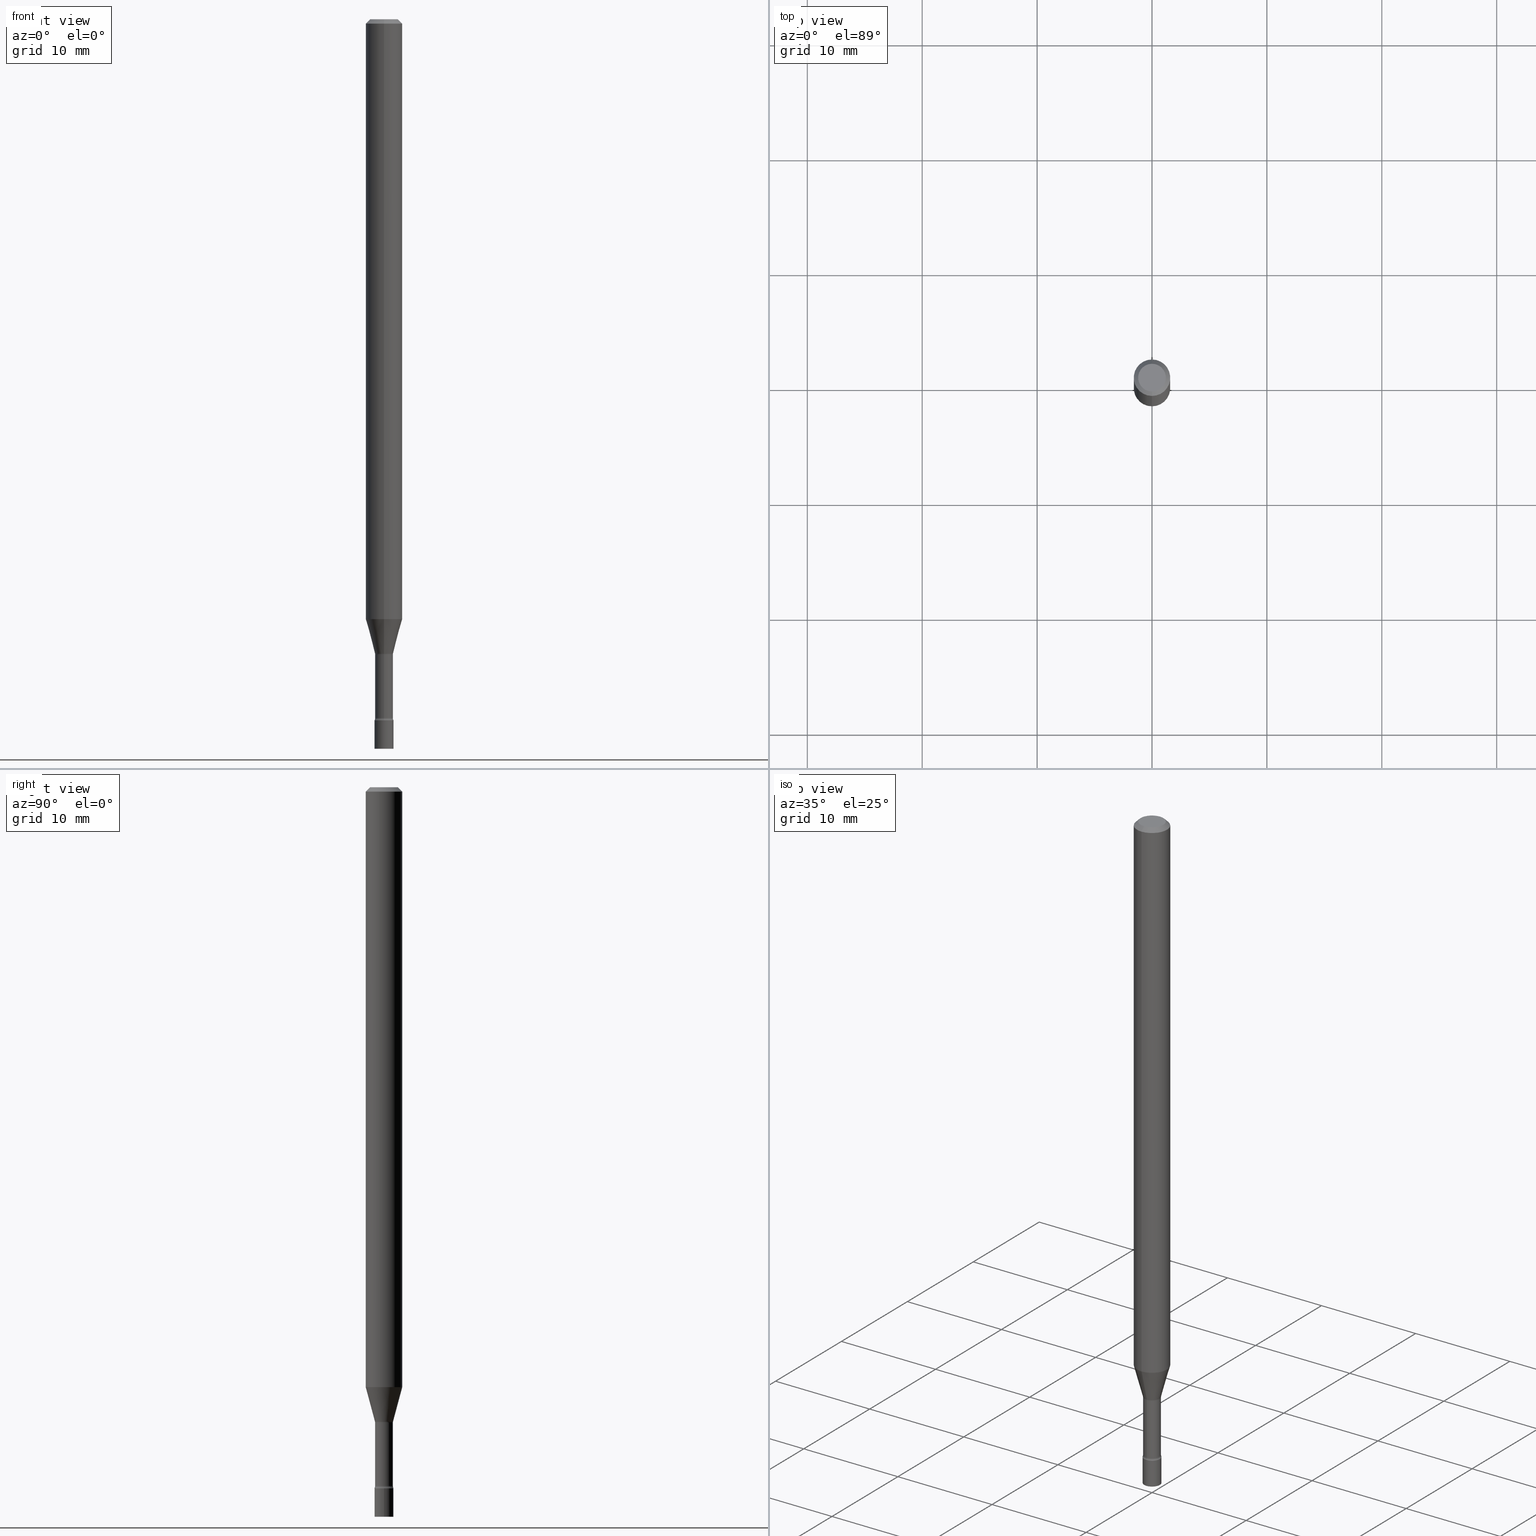
[diagram: canonical four-view strip — front | top / right | iso, engineering-drawing reading convention]
A machine part, canonical four-view strip (front | top / right | iso — engineering-drawing reading convention). The complete STEP part file that produces these views, byte-faithful:
ISO-10303-21;
HEADER;
FILE_DESCRIPTION (( 'STEP AP203' ),
    '1' );
FILE_NAME ('03549.STEP',
    '2024-03-08T21:46:13',
    ( '' ),
    ( '' ),
    'SwSTEP 2.0',
    'SolidWorks 2023',
    '' );
FILE_SCHEMA (( 'CONFIG_CONTROL_DESIGN' ));
ENDSEC;

DATA;
#1 = ADVANCED_FACE ( 'NONE', ( #135 ), #285, .T. ) ;
#2 = DIRECTION ( 'NONE',  ( -2.445468806185136597E-29, 3.491481338843145583E-15, 1.000000000000000000 ) ) ;
#3 = DIRECTION ( 'NONE',  ( -1.807323732225326589E-15, -0.2588190451025176864, 0.9659258262890690894 ) ) ;
#4 = ORIENTED_EDGE ( 'NONE', *, *, #188, .F. ) ;
#5 = CYLINDRICAL_SURFACE ( 'NONE', #463, 0.03055000000000001464 ) ;
#6 = VERTEX_POINT ( 'NONE', #75 ) ;
#7 = FACE_OUTER_BOUND ( 'NONE', #126, .T. ) ;
#8 = DESIGN_CONTEXT ( 'detailed design', #423, 'design' ) ;
#9 = CIRCLE ( 'NONE', #461, 0.01500000000000001853 ) ;
#10 = VERTEX_POINT ( 'NONE', #364 ) ;
#11 = AXIS2_PLACEMENT_3D ( 'NONE', #359, #149, #324 ) ;
#12 = DIRECTION ( 'NONE',  ( -2.445450430524897640E-29, 3.491507653834484674E-15, 1.000000000000000000 ) ) ;
#13 = APPROVAL_STATUS ( 'not_yet_approved' ) ;
#14 = ADVANCED_FACE ( 'NONE', ( #338 ), #414, .T. ) ;
#15 = DIRECTION ( 'NONE',  ( -6.982962677686265922E-15, -1.000000000000000000, 3.491507653834485069E-15 ) ) ;
#16 = DIRECTION ( 'NONE',  ( -2.445450430524897920E-29, 3.491507653834485069E-15, 1.000000000000000000 ) ) ;
#17 = DIRECTION ( 'NONE',  ( -2.445450430524897920E-29, 3.491507653834485069E-15, 1.000000000000000000 ) ) ;
#18 = FACE_OUTER_BOUND ( 'NONE', #312, .T. ) ;
#19 = CIRCLE ( 'NONE', #202, 0.03055000000000002505 ) ;
#20 = FACE_OUTER_BOUND ( 'NONE', #208, .T. ) ;
#21 = CC_DESIGN_PERSON_AND_ORGANIZATION_ASSIGNMENT ( #59, #91, ( #57 ) ) ;
#22 =( LENGTH_UNIT ( ) NAMED_UNIT ( * ) SI_UNIT ( $, .METRE. ) );
#23 = APPROVAL_STATUS ( 'not_yet_approved' ) ;
#24 = DIRECTION ( 'NONE',  ( -2.445468806185136597E-29, 3.491481338843145583E-15, 1.000000000000000000 ) ) ;
#25 = ORIENTED_EDGE ( 'NONE', *, *, #313, .F. ) ;
#26 = CIRCLE ( 'NONE', #108, 0.06250000000000000000 ) ;
#27 = CONICAL_SURFACE ( 'NONE', #342, 0.06250000000000000000, 0.7853981633974483900 ) ;
#28 = EDGE_CURVE ( 'NONE', #86, #520, #9, .T. ) ;
#29 = PLANE ( 'NONE',  #390 ) ;
#30 = ADVANCED_FACE ( 'NONE', ( #103 ), #468, .T. ) ;
#31 = DIRECTION ( 'NONE',  ( 1.000000000000000000, -6.982962677686258033E-15, 0.000000000000000000 ) ) ;
#32 = VERTEX_POINT ( 'NONE', #257 ) ;
#33 = TOROIDAL_SURFACE ( 'NONE', #434, 0.04555000000000000021, 0.01500000000000002373 ) ;
#34 = AXIS2_PLACEMENT_3D ( 'NONE', #93, #303, #263 ) ;
#35 = CARTESIAN_POINT ( 'NONE',  ( 3.668175645787353746E-31, -5.237261480751738302E-17, -0.01500000000000003067 ) ) ;
#36 = LINE ( 'NONE', #160, #318 ) ;
#37 = ORIENTED_EDGE ( 'NONE', *, *, #483, .T. ) ;
#38 = CARTESIAN_POINT ( 'NONE',  ( 0.000000000000000000, 0.000000000000000000, 0.000000000000000000 ) ) ;
#39 = EDGE_LOOP ( 'NONE', ( #457, #399, #45, #255 ) ) ;
#40 = PRODUCT_DEFINITION ( 'UNKNOWN', '', #57, #8 ) ;
#41 = CIRCLE ( 'NONE', #68, 0.03250000000000000111 ) ;
#42 = CARTESIAN_POINT ( 'NONE',  ( 3.668175645787353746E-31, -5.237261480751738302E-17, -0.01500000000000003067 ) ) ;
#43 = ORIENTED_EDGE ( 'NONE', *, *, #69, .F. ) ;
#44 = DIRECTION ( 'NONE',  ( -2.445468806185136877E-29, 3.491481338843145188E-15, 1.000000000000000000 ) ) ;
#45 = ORIENTED_EDGE ( 'NONE', *, *, #437, .F. ) ;
#46 = CARTESIAN_POINT ( 'NONE',  ( 0.000000000000000000, 0.000000000000000000, 0.000000000000000000 ) ) ;
#47 = EDGE_LOOP ( 'NONE', ( #409, #170 ) ) ;
#48 = PERSON_AND_ORGANIZATION ( #314, #62 ) ;
#49 = PRODUCT_RELATED_PRODUCT_CATEGORY ( 'detail', '', ( #469 ) ) ;
#50 = LINE ( 'NONE', #218, #386 ) ;
#51 = CC_DESIGN_PERSON_AND_ORGANIZATION_ASSIGNMENT ( #504, #144, ( #227 ) ) ;
#52 = DIRECTION ( 'NONE',  ( -1.000000000000000000, 6.982962677686265922E-15, -4.876176775795935793E-29 ) ) ;
#53 = CIRCLE ( 'NONE', #492, 0.03055000000000002505 ) ;
#54 = DATE_TIME_ROLE ( 'classification_date' ) ;
#55 = APPROVAL_DATE_TIME ( #275, #363 ) ;
#56 = AXIS2_PLACEMENT_3D ( 'NONE', #212, #370, #476 ) ;
#57 = PRODUCT_DEFINITION_FORMATION_WITH_SPECIFIED_SOURCE ( 'ANY', '', #469, .NOT_KNOWN. ) ;
#58 = CARTESIAN_POINT ( 'NONE',  ( 0.000000000000000000, 0.000000000000000000, 0.000000000000000000 ) ) ;
#59 = PERSON_AND_ORGANIZATION ( #314, #62 ) ;
#60 = CARTESIAN_POINT ( 'NONE',  ( 3.236522161387788350E-16, 0.04554999999999240212, -2.176974787463811456 ) ) ;
#61 = EDGE_CURVE ( 'NONE', #121, #520, #230, .T. ) ;
#62 = ORGANIZATION ( 'UNSPECIFIED', 'UNSPECIFIED', '' ) ;
#63 = CC_DESIGN_APPROVAL ( #220, ( #40 ) ) ;
#64 = DIRECTION ( 'NONE',  ( -2.445450430524897920E-29, 3.491507653834484674E-15, 1.000000000000000000 ) ) ;
#65 = PLANE ( 'NONE',  #178 ) ;
#66 = DIRECTION ( 'NONE',  ( -2.445450430524897920E-29, 3.491507653834485069E-15, 1.000000000000000000 ) ) ;
#67 = CIRCLE ( 'NONE', #374, 0.04749999999999999362 ) ;
#68 = AXIS2_PLACEMENT_3D ( 'NONE', #81, #481, #251 ) ;
#69 = EDGE_CURVE ( 'NONE', #165, #283, #26, .T. ) ;
#70 = DIRECTION ( 'NONE',  ( -2.445450430524897920E-29, 3.491507653834485069E-15, 1.000000000000000000 ) ) ;
#71 = EDGE_LOOP ( 'NONE', ( #371, #448, #298, #366 ) ) ;
#72 = DIRECTION ( 'NONE',  ( 1.000000000000000000, -6.982962677686265922E-15, 4.876176775795935232E-29 ) ) ;
#73 = CARTESIAN_POINT ( 'NONE',  ( 5.873971934120804780E-29, -8.386601384510434488E-15, -2.402000000000000135 ) ) ;
#74 = ORIENTED_EDGE ( 'NONE', *, *, #401, .T. ) ;
#75 = CARTESIAN_POINT ( 'NONE',  ( 2.309263891220912398E-16, 0.03249999999999161199, -2.402000000000000135 ) ) ;
#76 = EDGE_CURVE ( 'NONE', #107, #376, #516, .T. ) ;
#77 = DIRECTION ( 'NONE',  ( -2.445450430524897640E-29, 3.491507653834484674E-15, 1.000000000000000000 ) ) ;
#78 = ORIENTED_EDGE ( 'NONE', *, *, #286, .F. ) ;
#79 = VERTEX_POINT ( 'NONE', #92 ) ;
#80 = AXIS2_PLACEMENT_3D ( 'NONE', #38, #158, #513 ) ;
#81 = CARTESIAN_POINT ( 'NONE',  ( 5.874016072456698366E-29, -8.386538175901236044E-15, -2.402000000000000135 ) ) ;
#82 = ORIENTED_EDGE ( 'NONE', *, *, #28, .T. ) ;
#83 = DIRECTION ( 'NONE',  ( -2.445450430524897920E-29, 3.491507653834485069E-15, 1.000000000000000000 ) ) ;
#84 = ORIENTED_EDGE ( 'NONE', *, *, #401, .F. ) ;
#85 = DIRECTION ( 'NONE',  ( -2.445450430524897920E-29, 3.491507653834485069E-15, 1.000000000000000000 ) ) ;
#86 = VERTEX_POINT ( 'NONE', #224 ) ;
#87 = CARTESIAN_POINT ( 'NONE',  ( 3.316907271900976096E-16, 0.04749999999999999362, -1.803029440400282406E-16 ) ) ;
#88 = DIMENSIONAL_EXPONENTS ( 1.000000000000000000, 0.000000000000000000, 0.000000000000000000, 0.000000000000000000, 0.000000000000000000, 0.000000000000000000, 0.000000000000000000 ) ;
#89 = MECHANICAL_CONTEXT ( 'NONE', #311, 'mechanical' ) ;
#90 = AXIS2_PLACEMENT_3D ( 'NONE', #387, #245, #454 ) ;
#91 = PERSON_AND_ORGANIZATION_ROLE ( 'creator' ) ;
#92 = CARTESIAN_POINT ( 'NONE',  ( 4.440892098501126102E-16, 0.06249999999999279743, -2.055760976698175035 ) ) ;
#93 = CARTESIAN_POINT ( 'NONE',  ( 5.314189994066115235E-29, -7.587369102480593068E-15, -2.173092501787273090 ) ) ;
#94 = EDGE_CURVE ( 'NONE', #205, #121, #53, .T. ) ;
#95 = DIRECTION ( 'NONE',  ( 1.000000000000000000, -6.982962677686265922E-15, 4.876176775795935232E-29 ) ) ;
#96 = DIRECTION ( 'NONE',  ( 7.105427357600997914E-15, 1.000000000000000000, 0.000000000000000000 ) ) ;
#97 = DIRECTION ( 'NONE',  ( 1.000000000000000000, -6.982962677686265922E-15, 4.876176775795935793E-29 ) ) ;
#98 = APPROVAL_ROLE ( '' ) ;
#99 = DIRECTION ( 'NONE',  ( -2.445450430524897640E-29, 3.491507653834484674E-15, 1.000000000000000000 ) ) ;
#100 = DIRECTION ( 'NONE',  ( -6.982962677686266711E-15, -1.000000000000000000, 3.491507653834485463E-15 ) ) ;
#101 = AXIS2_PLACEMENT_3D ( 'NONE', #458, #308, #306 ) ;
#102 = AXIS2_PLACEMENT_3D ( 'NONE', #424, #17, #100 ) ;
#103 = FACE_OUTER_BOUND ( 'NONE', #154, .T. ) ;
#104 = DATE_AND_TIME ( #307, #186 ) ;
#105 = ADVANCED_FACE ( 'NONE', ( #20 ), #431, .T. ) ;
#106 = ORIENTED_EDGE ( 'NONE', *, *, #421, .T. ) ;
#107 = VERTEX_POINT ( 'NONE', #346 ) ;
#108 = AXIS2_PLACEMENT_3D ( 'NONE', #274, #16, #134 ) ;
#109 = DIRECTION ( 'NONE',  ( -6.982962677686265922E-15, -1.000000000000000000, 3.491507653834484674E-15 ) ) ;
#110 = EDGE_CURVE ( 'NONE', #199, #283, #428, .T. ) ;
#111 = CARTESIAN_POINT ( 'NONE',  ( 5.323683931245224620E-29, -7.600924132634597920E-15, -2.176974787463811012 ) ) ;
#112 = FACE_OUTER_BOUND ( 'NONE', #327, .T. ) ;
#113 = ORIENTED_EDGE ( 'NONE', *, *, #297, .F. ) ;
#114 = CARTESIAN_POINT ( 'NONE',  ( -3.773273898774340269E-16, -0.04749999999999999362, 1.369339525913576529E-16 ) ) ;
#115 = DIRECTION ( 'NONE',  ( -2.445468806185136597E-29, 3.491481338843145583E-15, 1.000000000000000000 ) ) ;
#116 = ORIENTED_EDGE ( 'NONE', *, *, #466, .F. ) ;
#117 = CIRCLE ( 'NONE', #225, 0.03055000000000000424 ) ;
#118 = DIRECTION ( 'NONE',  ( -6.982962677686265922E-15, -1.000000000000000000, 0.000000000000000000 ) ) ;
#119 = CIRCLE ( 'NONE', #233, 0.03250000000000000111 ) ;
#120 = FACE_OUTER_BOUND ( 'NONE', #167, .T. ) ;
#121 = VERTEX_POINT ( 'NONE', #508 ) ;
#122 = DIRECTION ( 'NONE',  ( -2.445450430524897920E-29, 3.491507653834485069E-15, 1.000000000000000000 ) ) ;
#123 = ORIENTED_EDGE ( 'NONE', *, *, #503, .T. ) ;
#124 = EDGE_CURVE ( 'NONE', #520, #32, #117, .T. ) ;
#125 = DIRECTION ( 'NONE',  ( -6.982962677686265922E-15, -1.000000000000000000, 0.000000000000000000 ) ) ;
#126 = EDGE_LOOP ( 'NONE', ( #241, #444, #350, #78 ) ) ;
#127 = DIRECTION ( 'NONE',  ( -6.982962677686266711E-15, -1.000000000000000000, 3.491507653834485463E-15 ) ) ;
#128 = VERTEX_POINT ( 'NONE', #114 ) ;
#129 = APPROVAL_DATE_TIME ( #510, #343 ) ;
#130 = CARTESIAN_POINT ( 'NONE',  ( -4.364351673553916201E-16, -0.06250000000000000000, 2.182192283646553168E-16 ) ) ;
#131 = AXIS2_PLACEMENT_3D ( 'NONE', #384, #179, #266 ) ;
#132 = FACE_OUTER_BOUND ( 'NONE', #235, .T. ) ;
#133 = ORIENTED_EDGE ( 'NONE', *, *, #432, .F. ) ;
#134 = DIRECTION ( 'NONE',  ( -6.982962677686265922E-15, -1.000000000000000000, 3.483106191921935554E-15 ) ) ;
#135 = FACE_OUTER_BOUND ( 'NONE', #489, .T. ) ;
#136 = APPLICATION_PROTOCOL_DEFINITION ( 'international standard', 'config_control_design', 1994, #423 ) ;
#137 = COORDINATED_UNIVERSAL_TIME_OFFSET ( 5, 0, .BEHIND. ) ;
#138 = AXIS2_PLACEMENT_3D ( 'NONE', #453, #122, #244 ) ;
#139 = LOCAL_TIME ( 16, 46, 13.00000000000000000, #498 ) ;
#140 = DIRECTION ( 'NONE',  ( 6.982962677686265922E-15, 1.000000000000000000, -3.491507653834484674E-15 ) ) ;
#141 = MANIFOLD_SOLID_BREP ( 'Body-Move/Copy2[1]', #232 ) ;
#142 = CARTESIAN_POINT ( 'NONE',  ( 2.207024792658633264E-16, 0.03106111260565639492, -2.173092501787273090 ) ) ;
#143 = COORDINATED_UNIVERSAL_TIME_OFFSET ( 5, 0, .BEHIND. ) ;
#144 = PERSON_AND_ORGANIZATION_ROLE ( 'classification_officer' ) ;
#145 = ADVANCED_FACE ( 'NONE', ( #433 ), #29, .F. ) ;
#146 = CC_DESIGN_SECURITY_CLASSIFICATION ( #227, ( #57 ) ) ;
#147 = ORIENTED_EDGE ( 'NONE', *, *, #248, .F. ) ;
#148 = ADVANCED_FACE ( 'NONE', ( #190 ), #358, .F. ) ;
#149 = DIRECTION ( 'NONE',  ( -2.445450430524897920E-29, 3.491507653834485069E-15, 1.000000000000000000 ) ) ;
#150 = ORIENTED_EDGE ( 'NONE', *, *, #248, .T. ) ;
#151 = SHAPE_DEFINITION_REPRESENTATION ( #305, #517 ) ;
#152 = CARTESIAN_POINT ( 'NONE',  ( -2.133295098033155261E-16, -0.03055000000000001464, 1.066655588246435736E-16 ) ) ;
#153 = CARTESIAN_POINT ( 'NONE',  ( 5.855885930954364622E-29, -8.360778976624068508E-15, -2.394604224178627838 ) ) ;
#154 = EDGE_LOOP ( 'NONE', ( #487, #336, #113, #482 ) ) ;
#155 = ADVANCED_FACE ( 'NONE', ( #193 ), #33, .F. ) ;
#156 = CIRCLE ( 'NONE', #102, 0.04749999999999999362 ) ;
#157 = CIRCLE ( 'NONE', #509, 0.03250000000000000111 ) ;
#158 = DIRECTION ( 'NONE',  ( -2.445450430524897920E-29, 3.491507653834485069E-15, 1.000000000000000000 ) ) ;
#159 = EDGE_LOOP ( 'NONE', ( #133, #294, #288, #25 ) ) ;
#160 = CARTESIAN_POINT ( 'NONE',  ( 4.440892098500625669E-16, 0.06250000000000000000, -2.182192283646553168E-16 ) ) ;
#161 = ORIENTED_EDGE ( 'NONE', *, *, #286, .T. ) ;
#162 = ORIENTED_EDGE ( 'NONE', *, *, #76, .F. ) ;
#163 = ADVANCED_FACE ( 'NONE', ( #7 ), #427, .T. ) ;
#164 = ORIENTED_EDGE ( 'NONE', *, *, #297, .T. ) ;
#165 = VERTEX_POINT ( 'NONE', #356 ) ;
#166 = CONICAL_SURFACE ( 'NONE', #435, 0.03106111260566398607, 0.2617993877991497409 ) ;
#167 = EDGE_LOOP ( 'NONE', ( #147, #123, #215, #331 ) ) ;
#168 = EDGE_CURVE ( 'NONE', #107, #219, #284, .T. ) ;
#169 = FACE_OUTER_BOUND ( 'NONE', #39, .T. ) ;
#170 = ORIENTED_EDGE ( 'NONE', *, *, #181, .F. ) ;
#171 = APPROVAL_ROLE ( '' ) ;
#172 = DIRECTION ( 'NONE',  ( 4.937700262164548042E-15, 0.7071067811865451302, -0.7071067811865499042 ) ) ;
#173 = PERSON_AND_ORGANIZATION_ROLE ( 'creator' ) ;
#174 = DATE_TIME_ROLE ( 'creation_date' ) ;
#175 = ADVANCED_FACE ( 'NONE', ( #120 ), #309, .F. ) ;
#176 = CARTESIAN_POINT ( 'NONE',  ( 2.170708057747692345E-16, 0.03054999999999239574, -2.176974787463811012 ) ) ;
#177 = AXIS2_PLACEMENT_3D ( 'NONE', #422, #24, #269 ) ;
#178 = AXIS2_PLACEMENT_3D ( 'NONE', #87, #262, #140 ) ;
#179 = DIRECTION ( 'NONE',  ( -1.000000000000000000, 6.982962677686265922E-15, -4.883557194083112340E-29 ) ) ;
#180 = EDGE_CURVE ( 'NONE', #128, #199, #67, .T. ) ;
#181 = EDGE_CURVE ( 'NONE', #6, #10, #200, .T. ) ;
#182 = DIRECTION ( 'NONE',  ( 1.000000000000000000, -7.105427357601001070E-15, 4.926315830807781234E-29 ) ) ;
#183 = DIRECTION ( 'NONE',  ( 1.000000000000000000, -7.105427357601001070E-15, 4.926315830807781234E-29 ) ) ;
#184 = AXIS2_PLACEMENT_3D ( 'NONE', #330, #380, #446 ) ;
#185 = AXIS2_PLACEMENT_3D ( 'NONE', #256, #413, #97 ) ;
#186 = LOCAL_TIME ( 16, 46, 13.00000000000000000, #474 ) ;
#187 = APPROVAL_ROLE ( '' ) ;
#188 = EDGE_CURVE ( 'NONE', #480, #360, #488, .T. ) ;
#189 = CALENDAR_DATE ( 2024, 8, 3 ) ;
#190 = FACE_OUTER_BOUND ( 'NONE', #334, .T. ) ;
#191 = CARTESIAN_POINT ( 'NONE',  ( 5.314189994066115235E-29, -7.587369102480593068E-15, -2.173092501787273090 ) ) ;
#192 = CIRCLE ( 'NONE', #11, 0.06250000000000000000 ) ;
#193 = FACE_OUTER_BOUND ( 'NONE', #252, .T. ) ;
#194 = DIRECTION ( 'NONE',  ( -6.982962677686265922E-15, -1.000000000000000000, 3.491507653834485069E-15 ) ) ;
#195 = EDGE_CURVE ( 'NONE', #128, #165, #236, .T. ) ;
#196 = ORIENTED_EDGE ( 'NONE', *, *, #503, .F. ) ;
#197 = DIRECTION ( 'NONE',  ( -6.982962677686265922E-15, -1.000000000000000000, 0.000000000000000000 ) ) ;
#198 = DIRECTION ( 'NONE',  ( -4.851104656540964275E-15, -0.7071067811865500152, -0.7071067811865450192 ) ) ;
#199 = VERTEX_POINT ( 'NONE', #394 ) ;
#200 = CIRCLE ( 'NONE', #440, 0.03250000000000000111 ) ;
#201 = CARTESIAN_POINT ( 'NONE',  ( 5.323723934594267807E-29, -7.600866845561919593E-15, -2.176974787463811012 ) ) ;
#202 = AXIS2_PLACEMENT_3D ( 'NONE', #153, #204, #125 ) ;
#203 = ORIENTED_EDGE ( 'NONE', *, *, #351, .F. ) ;
#204 = DIRECTION ( 'NONE',  ( -2.445450430524897920E-29, 3.491507653834485069E-15, 1.000000000000000000 ) ) ;
#205 = VERTEX_POINT ( 'NONE', #242 ) ;
#206 = CC_DESIGN_DATE_AND_TIME_ASSIGNMENT ( #104, #54, ( #227 ) ) ;
#207 = CARTESIAN_POINT ( 'NONE',  ( -2.168985900527088918E-16, -0.03106111260567157376, -2.173092501787273090 ) ) ;
#208 = EDGE_LOOP ( 'NONE', ( #162, #403 ) ) ;
#209 = DIRECTION ( 'NONE',  ( -2.445450430524897920E-29, 3.491507653834485069E-15, 1.000000000000000000 ) ) ;
#210 = ORIENTED_EDGE ( 'NONE', *, *, #94, .F. ) ;
#211 = DIRECTION ( 'NONE',  ( -2.445450430524897920E-29, 3.491507653834485069E-15, 1.000000000000000000 ) ) ;
#212 = CARTESIAN_POINT ( 'NONE',  ( 6.113672015462842613E-29, -8.728703347107864943E-15, -2.500000000000000000 ) ) ;
#213 = ORIENTED_EDGE ( 'NONE', *, *, #511, .F. ) ;
#214 = FACE_OUTER_BOUND ( 'NONE', #247, .T. ) ;
#215 = ORIENTED_EDGE ( 'NONE', *, *, #181, .T. ) ;
#216 = ORIENTED_EDGE ( 'NONE', *, *, #261, .F. ) ;
#217 = VECTOR ( 'NONE', #400, 39.37007874015748143 ) ;
#218 = CARTESIAN_POINT ( 'NONE',  ( -0.03250000000000000111, 2.309263891220325683E-16, -1.598653904332844407E-30 ) ) ;
#219 = VERTEX_POINT ( 'NONE', #519 ) ;
#220 = APPROVAL ( #13, 'UNSPECIFIED' ) ;
#221 =( NAMED_UNIT ( * ) PLANE_ANGLE_UNIT ( ) SI_UNIT ( $, .RADIAN. ) );
#222 = CARTESIAN_POINT ( 'NONE',  ( 0.000000000000000000, 0.000000000000000000, 0.000000000000000000 ) ) ;
#223 = APPROVAL_STATUS ( 'not_yet_approved' ) ;
#224 = CARTESIAN_POINT ( 'NONE',  ( 3.323958445579881655E-16, 0.03106111260565639146, -2.173092501787273090 ) ) ;
#225 = AXIS2_PLACEMENT_3D ( 'NONE', #111, #66, #348 ) ;
#226 = AXIS2_PLACEMENT_3D ( 'NONE', #408, #2, #72 ) ;
#227 = SECURITY_CLASSIFICATION ( '', '', #347 ) ;
#228 = CARTESIAN_POINT ( 'NONE',  ( 4.364351673553919652E-16, 0.06249999999999995143, -0.01500000000000024751 ) ) ;
#229 = PERSON_AND_ORGANIZATION ( #314, #62 ) ;
#230 = LINE ( 'NONE', #464, #249 ) ;
#231 = EDGE_CURVE ( 'NONE', #283, #165, #310, .T. ) ;
#232 = CLOSED_SHELL ( 'NONE', ( #30, #407, #452, #105 ) ) ;
#233 = AXIS2_PLACEMENT_3D ( 'NONE', #328, #115, #31 ) ;
#234 = ORIENTED_EDGE ( 'NONE', *, *, #61, .F. ) ;
#235 = EDGE_LOOP ( 'NONE', ( #372, #203, #74, #406 ) ) ;
#236 = LINE ( 'NONE', #240, #250 ) ;
#237 = AXIS2_PLACEMENT_3D ( 'NONE', #320, #183, #96 ) ;
#238 = LOCAL_TIME ( 16, 46, 13.00000000000000000, #267 ) ;
#239 = ADVANCED_FACE ( 'NONE', ( #112 ), #479, .T. ) ;
#240 = CARTESIAN_POINT ( 'NONE',  ( -4.287811248607203282E-16, -0.06250000000000005551, -0.01499999999999981209 ) ) ;
#241 = ORIENTED_EDGE ( 'NONE', *, *, #421, .F. ) ;
#242 = CARTESIAN_POINT ( 'NONE',  ( -2.133295098032570271E-16, -0.03055000000000838642, -2.394604224178627838 ) ) ;
#243 = EDGE_LOOP ( 'NONE', ( #254, #368 ) ) ;
#244 = DIRECTION ( 'NONE',  ( -6.982962677686265922E-15, -1.000000000000000000, 3.491507653834485069E-15 ) ) ;
#245 = DIRECTION ( 'NONE',  ( -2.445450430524897920E-29, 3.491507653834485069E-15, 1.000000000000000000 ) ) ;
#246 = CARTESIAN_POINT ( 'NONE',  ( 5.314189994066115235E-29, -7.587369102480593068E-15, -2.173092501787273090 ) ) ;
#247 = EDGE_LOOP ( 'NONE', ( #216, #161, #438, #325 ) ) ;
#248 = EDGE_CURVE ( 'NONE', #121, #205, #19, .T. ) ;
#249 = VECTOR ( 'NONE', #99, 39.37007874015748143 ) ;
#250 = VECTOR ( 'NONE', #198, 39.37007874015748143 ) ;
#251 = DIRECTION ( 'NONE',  ( 1.000000000000000000, -6.982962677686258033E-15, 0.000000000000000000 ) ) ;
#252 = EDGE_LOOP ( 'NONE', ( #213, #82, #280, #84 ) ) ;
#253 = DIRECTION ( 'NONE',  ( -2.445450430524897920E-29, 3.491507653834485069E-15, 1.000000000000000000 ) ) ;
#254 = ORIENTED_EDGE ( 'NONE', *, *, #512, .T. ) ;
#255 = ORIENTED_EDGE ( 'NONE', *, *, #276, .F. ) ;
#256 = CARTESIAN_POINT ( 'NONE',  ( 5.874016072456698366E-29, -8.386538175901236044E-15, -2.402000000000000135 ) ) ;
#257 = CARTESIAN_POINT ( 'NONE',  ( -2.133295098032622040E-16, -0.03055000000000760579, -2.176974787463811012 ) ) ;
#258 = AXIS2_PLACEMENT_3D ( 'NONE', #300, #471, #95 ) ;
#259 =( NAMED_UNIT ( * ) SI_UNIT ( $, .STERADIAN. ) SOLID_ANGLE_UNIT ( ) );
#260 = VECTOR ( 'NONE', #12, 39.37007874015748143 ) ;
#261 = EDGE_CURVE ( 'NONE', #79, #283, #36, .T. ) ;
#262 = DIRECTION ( 'NONE',  ( 2.445450430524897920E-29, -3.491507653834484674E-15, -1.000000000000000000 ) ) ;
#263 = DIRECTION ( 'NONE',  ( -6.982962677686265922E-15, -1.000000000000000000, 0.000000000000000000 ) ) ;
#264 = DIRECTION ( 'NONE',  ( -6.982962677686267499E-15, -1.000000000000000000, 0.000000000000000000 ) ) ;
#265 = CARTESIAN_POINT ( 'NONE',  ( 2.269462870248647851E-16, 0.03249999999999127198, -2.500000000000000000 ) ) ;
#266 = DIRECTION ( 'NONE',  ( -6.982962677686266711E-15, -1.000000000000000000, 0.000000000000000000 ) ) ;
#267 = COORDINATED_UNIVERSAL_TIME_OFFSET ( 5, 0, .BEHIND. ) ;
#268 = CC_DESIGN_PERSON_AND_ORGANIZATION_ASSIGNMENT ( #388, #340, ( #57 ) ) ;
#269 = DIRECTION ( 'NONE',  ( 1.000000000000000000, -6.982962677686287221E-15, 0.000000000000000000 ) ) ;
#270 =( CONVERSION_BASED_UNIT ( 'INCH', #344 ) LENGTH_UNIT ( ) NAMED_UNIT ( #88 ) );
#271 = VECTOR ( 'NONE', #172, 39.37007874015748143 ) ;
#272 = CIRCLE ( 'NONE', #478, 0.03106111260566398607 ) ;
#273 = PERSON_AND_ORGANIZATION ( #314, #62 ) ;
#274 = CARTESIAN_POINT ( 'NONE',  ( 3.668175645787353746E-31, -5.237261480751738302E-17, -0.01500000000000003067 ) ) ;
#275 = DATE_AND_TIME ( #426, #238 ) ;
#276 = EDGE_CURVE ( 'NONE', #205, #32, #514, .T. ) ;
#277 = CIRCLE ( 'NONE', #441, 0.01500000000000001853 ) ;
#278 = CARTESIAN_POINT ( 'NONE',  ( -4.364351673553415274E-16, -0.06250000000000720257, -2.055760976698174591 ) ) ;
#279 = CARTESIAN_POINT ( 'NONE',  ( 5.855929933387993596E-29, -8.360715962634647749E-15, -2.394604224178627838 ) ) ;
#280 = ORIENTED_EDGE ( 'NONE', *, *, #124, .T. ) ;
#281 = CC_DESIGN_APPROVAL ( #363, ( #57 ) ) ;
#282 = CARTESIAN_POINT ( 'NONE',  ( 7.070447920638806063E-46, -1.009487770547437814E-31, -2.891266096578038568E-17 ) ) ;
#283 = VERTEX_POINT ( 'NONE', #398 ) ;
#284 = LINE ( 'NONE', #445, #217 ) ;
#285 = CYLINDRICAL_SURFACE ( 'NONE', #184, 0.06250000000000000000 ) ;
#286 = EDGE_CURVE ( 'NONE', #79, #360, #192, .T. ) ;
#287 = DIRECTION ( 'NONE',  ( -6.982962677686265922E-15, -1.000000000000000000, 0.000000000000000000 ) ) ;
#288 = ORIENTED_EDGE ( 'NONE', *, *, #168, .T. ) ;
#289 = ORIENTED_EDGE ( 'NONE', *, *, #110, .T. ) ;
#290 = DIRECTION ( 'NONE',  ( -2.445450430524897920E-29, 3.491507653834485069E-15, 1.000000000000000000 ) ) ;
#291 = ORIENTED_EDGE ( 'NONE', *, *, #351, .T. ) ;
#292 = TOROIDAL_SURFACE ( 'NONE', #90, 0.04555000000000000021, 0.01500000000000002373 ) ;
#293 = UNCERTAINTY_MEASURE_WITH_UNIT (LENGTH_MEASURE( 1.000000000000000082E-05 ), #270, 'distance_accuracy_value', 'NONE');
#294 = ORIENTED_EDGE ( 'NONE', *, *, #499, .T. ) ;
#295 = ORIENTED_EDGE ( 'NONE', *, *, #231, .T. ) ;
#296 = ADVANCED_FACE ( 'NONE', ( #321 ), #27, .T. ) ;
#297 = EDGE_CURVE ( 'NONE', #219, #410, #41, .T. ) ;
#298 = ORIENTED_EDGE ( 'NONE', *, *, #69, .T. ) ;
#299 = DIRECTION ( 'NONE',  ( 1.000000000000000000, 0.000000000000000000, 0.000000000000000000 ) ) ;
#300 = CARTESIAN_POINT ( 'NONE',  ( 0.000000000000000000, 0.000000000000000000, 0.000000000000000000 ) ) ;
#301 = CIRCLE ( 'NONE', #131, 0.01500000000000000291 ) ;
#302 = CALENDAR_DATE ( 2024, 8, 3 ) ;
#303 = DIRECTION ( 'NONE',  ( -2.445450430524897920E-29, 3.491507653834485069E-15, 1.000000000000000000 ) ) ;
#304 = DIRECTION ( 'NONE',  ( 1.839019923739596765E-15, 0.2588190451025244587, 0.9659258262890673130 ) ) ;
#305 = PRODUCT_DEFINITION_SHAPE ( 'NONE', 'NONE',  #40 ) ;
#306 = DIRECTION ( 'NONE',  ( 6.982962677686265922E-15, 1.000000000000000000, -3.483106191921935554E-15 ) ) ;
#307 = CALENDAR_DATE ( 2024, 8, 3 ) ;
#308 = DIRECTION ( 'NONE',  ( 2.445450430524897920E-29, -3.491507653834485069E-15, -1.000000000000000000 ) ) ;
#309 = TOROIDAL_SURFACE ( 'NONE', #477, 0.04555000000000002797, 0.01499999999999999944 ) ;
#310 = CIRCLE ( 'NONE', #326, 0.06250000000000000000 ) ;
#311 = APPLICATION_CONTEXT ( 'configuration controlled 3d designs of mechanical parts and assemblies' ) ;
#312 = EDGE_LOOP ( 'NONE', ( #164, #392 ) ) ;
#313 = EDGE_CURVE ( 'NONE', #410, #219, #119, .T. ) ;
#314 = PERSON ( 'UNSPECIFIED', 'UNSPECIFIED', 'UNSPECIFIED', ('UNSPECIFIED'), ('UNSPECIFIED'), ('UNSPECIFIED') ) ;
#315 = ADVANCED_FACE ( 'NONE', ( #442 ), #166, .T. ) ;
#316 = CARTESIAN_POINT ( 'NONE',  ( 2.269462870248623692E-16, 0.03249999999999161199, -2.402000000000000135 ) ) ;
#317 = MANIFOLD_SOLID_BREP ( 'Body-Move/Copy2[2]', #349 ) ;
#318 = VECTOR ( 'NONE', #77, 39.37007874015748143 ) ;
#319 = LOCAL_TIME ( 16, 46, 13.00000000000000000, #137 ) ;
#320 = CARTESIAN_POINT ( 'NONE',  ( 3.236522161387843077E-16, 0.04554999999999166660, -2.394604224178627838 ) ) ;
#321 = FACE_OUTER_BOUND ( 'NONE', #450, .T. ) ;
#322 = ORIENTED_EDGE ( 'NONE', *, *, #430, .F. ) ;
#323 = DIRECTION ( 'NONE',  ( 2.445450430524897920E-29, -3.491507653834485069E-15, -1.000000000000000000 ) ) ;
#324 = DIRECTION ( 'NONE',  ( -6.982962677686265922E-15, -1.000000000000000000, 4.370956789862821150E-15 ) ) ;
#325 = ORIENTED_EDGE ( 'NONE', *, *, #231, .F. ) ;
#326 = AXIS2_PLACEMENT_3D ( 'NONE', #42, #447, #355 ) ;
#327 = EDGE_LOOP ( 'NONE', ( #234, #150, #515, #486 ) ) ;
#328 = CARTESIAN_POINT ( 'NONE',  ( 5.874016072456698366E-29, -8.386538175901236044E-15, -2.402000000000000135 ) ) ;
#329 = DIRECTION ( 'NONE',  ( -6.982962677686265922E-15, -1.000000000000000000, 0.000000000000000000 ) ) ;
#330 = CARTESIAN_POINT ( 'NONE',  ( 0.000000000000000000, 0.000000000000000000, 0.000000000000000000 ) ) ;
#331 = ORIENTED_EDGE ( 'NONE', *, *, #507, .F. ) ;
#332 = CIRCLE ( 'NONE', #484, 0.03055000000000000424 ) ;
#333 = CARTESIAN_POINT ( 'NONE',  ( 5.873971934120804780E-29, -8.386601384510434488E-15, -2.402000000000000135 ) ) ;
#334 = EDGE_LOOP ( 'NONE', ( #196, #210, #339, #37 ) ) ;
#335 = APPLICATION_PROTOCOL_DEFINITION ( 'international standard', 'config_control_design', 1994, #311 ) ;
#336 = ORIENTED_EDGE ( 'NONE', *, *, #432, .T. ) ;
#337 = CC_DESIGN_DATE_AND_TIME_ASSIGNMENT ( #491, #174, ( #40 ) ) ;
#338 = FACE_OUTER_BOUND ( 'NONE', #71, .T. ) ;
#339 = ORIENTED_EDGE ( 'NONE', *, *, #507, .T. ) ;
#340 = PERSON_AND_ORGANIZATION_ROLE ( 'design_supplier' ) ;
#341 = AXIS2_PLACEMENT_3D ( 'NONE', #265, #418, #52 ) ;
#342 = AXIS2_PLACEMENT_3D ( 'NONE', #35, #323, #365 ) ;
#343 = APPROVAL ( #23, 'UNSPECIFIED' ) ;
#344 = LENGTH_MEASURE_WITH_UNIT ( LENGTH_MEASURE( 0.02539999999999999897 ), #22 );
#345 = LINE ( 'NONE', #142, #451 ) ;
#346 = CARTESIAN_POINT ( 'NONE',  ( 0.03250000000000000111, -8.955649634132668295E-15, -2.500000000000000000 ) ) ;
#347 = SECURITY_CLASSIFICATION_LEVEL ( 'unclassified' ) ;
#348 = DIRECTION ( 'NONE',  ( -6.982962677686265922E-15, -1.000000000000000000, 0.000000000000000000 ) ) ;
#349 = CLOSED_SHELL ( 'NONE', ( #155, #475, #175, #14, #1, #315, #163, #397, #296, #373, #145, #148, #239, #443 ) ) ;
#350 = ORIENTED_EDGE ( 'NONE', *, *, #188, .T. ) ;
#351 = EDGE_CURVE ( 'NONE', #480, #86, #272, .T. ) ;
#352 = CC_DESIGN_PERSON_AND_ORGANIZATION_ASSIGNMENT ( #455, #412, ( #469 ) ) ;
#353 = CIRCLE ( 'NONE', #237, 0.01500000000000000291 ) ;
#354 = ORIENTED_EDGE ( 'NONE', *, *, #261, .T. ) ;
#355 = DIRECTION ( 'NONE',  ( -6.982962677686265922E-15, -1.000000000000000000, 3.483106191921935554E-15 ) ) ;
#356 = CARTESIAN_POINT ( 'NONE',  ( -4.364351673553912750E-16, -0.06250000000000005551, -0.01499999999999981209 ) ) ;
#357 = CARTESIAN_POINT ( 'NONE',  ( -2.168985900527088918E-16, -0.03106111260567157376, -2.173092501787273090 ) ) ;
#358 = TOROIDAL_SURFACE ( 'NONE', #138, 0.04555000000000002797, 0.01499999999999999944 ) ;
#359 = CARTESIAN_POINT ( 'NONE',  ( 5.027261565522835838E-29, -7.177705184595932540E-15, -2.055760976698174591 ) ) ;
#360 = VERTEX_POINT ( 'NONE', #278 ) ;
#361 = APPROVAL_PERSON_ORGANIZATION ( #48, #220, #171 ) ;
#362 = APPROVAL_PERSON_ORGANIZATION ( #273, #363, #98 ) ;
#363 = APPROVAL ( #223, 'UNSPECIFIED' ) ;
#364 = CARTESIAN_POINT ( 'NONE',  ( -2.269462870247449275E-16, -0.03250000000000838329, -2.402000000000000135 ) ) ;
#365 = DIRECTION ( 'NONE',  ( 6.982962677686265922E-15, 1.000000000000000000, -3.483106191921935554E-15 ) ) ;
#366 = ORIENTED_EDGE ( 'NONE', *, *, #110, .F. ) ;
#367 = DIRECTION ( 'NONE',  ( -6.982962677686265922E-15, -1.000000000000000000, 0.000000000000000000 ) ) ;
#368 = ORIENTED_EDGE ( 'NONE', *, *, #180, .T. ) ;
#369 = DIRECTION ( 'NONE',  ( -6.982962677686265922E-15, -1.000000000000000000, 3.491507653834485069E-15 ) ) ;
#370 = DIRECTION ( 'NONE',  ( -2.445468806185136597E-29, 3.491481338843145583E-15, 1.000000000000000000 ) ) ;
#371 = ORIENTED_EDGE ( 'NONE', *, *, #180, .F. ) ;
#372 = ORIENTED_EDGE ( 'NONE', *, *, #28, .F. ) ;
#373 = ADVANCED_FACE ( 'NONE', ( #439 ), #65, .F. ) ;
#374 = AXIS2_PLACEMENT_3D ( 'NONE', #282, #393, #127 ) ;
#375 = LINE ( 'NONE', #130, #260 ) ;
#376 = VERTEX_POINT ( 'NONE', #417 ) ;
#377 = APPROVAL_PERSON_ORGANIZATION ( #229, #343, #187 ) ;
#378 = DIRECTION ( 'NONE',  ( -2.445450430524897920E-29, 3.491507653834485069E-15, 1.000000000000000000 ) ) ;
#379 = DIRECTION ( 'NONE',  ( 7.105427357601001859E-15, 1.000000000000000000, 0.000000000000000000 ) ) ;
#380 = DIRECTION ( 'NONE',  ( -2.445450430524897920E-29, 3.491507653834485069E-15, 1.000000000000000000 ) ) ;
#381 = PERSON_AND_ORGANIZATION ( #314, #62 ) ;
#382 = CYLINDRICAL_SURFACE ( 'NONE', #415, 0.06250000000000000000 ) ;
#383 = CC_DESIGN_PERSON_AND_ORGANIZATION_ASSIGNMENT ( #381, #173, ( #40 ) ) ;
#384 = CARTESIAN_POINT ( 'NONE',  ( -3.180739499685510623E-16, -0.04555000000000838239, -2.394604224178627394 ) ) ;
#385 = CARTESIAN_POINT ( 'NONE',  ( 5.855885930954364622E-29, -8.360778976624068508E-15, -2.394604224178627838 ) ) ;
#386 = VECTOR ( 'NONE', #44, 39.37007874015748143 ) ;
#387 = CARTESIAN_POINT ( 'NONE',  ( 5.323723934594267807E-29, -7.600866845561919593E-15, -2.176974787463811012 ) ) ;
#388 = PERSON_AND_ORGANIZATION ( #314, #62 ) ;
#389 = EDGE_LOOP ( 'NONE', ( #291, #106, #322, #4 ) ) ;
#390 = AXIS2_PLACEMENT_3D ( 'NONE', #316, #64, #109 ) ;
#391 = LOCAL_TIME ( 16, 46, 13.00000000000000000, #143 ) ;
#392 = ORIENTED_EDGE ( 'NONE', *, *, #313, .T. ) ;
#393 = DIRECTION ( 'NONE',  ( -2.445450430524897920E-29, 3.491507653834485069E-15, 1.000000000000000000 ) ) ;
#394 = CARTESIAN_POINT ( 'NONE',  ( 3.840629472727447874E-16, 0.04749999999999999362, -1.947592745229184365E-16 ) ) ;
#395 = ORIENTED_EDGE ( 'NONE', *, *, #430, .T. ) ;
#396 = DIRECTION ( 'NONE',  ( -6.982962677686265922E-15, -1.000000000000000000, 3.491507653834485069E-15 ) ) ;
#397 = ADVANCED_FACE ( 'NONE', ( #214 ), #382, .T. ) ;
#398 = CARTESIAN_POINT ( 'NONE',  ( 4.440892098501132019E-16, 0.06249999999999995143, -0.01500000000000024751 ) ) ;
#399 = ORIENTED_EDGE ( 'NONE', *, *, #61, .T. ) ;
#400 = DIRECTION ( 'NONE',  ( -2.445468806185136877E-29, 3.491481338843145188E-15, 1.000000000000000000 ) ) ;
#401 = EDGE_CURVE ( 'NONE', #480, #32, #277, .T. ) ;
#402 = DIRECTION ( 'NONE',  ( -2.445450430524897920E-29, 3.491507653834485069E-15, 1.000000000000000000 ) ) ;
#403 = ORIENTED_EDGE ( 'NONE', *, *, #499, .F. ) ;
#404 = CYLINDRICAL_SURFACE ( 'NONE', #226, 0.03250000000000000111 ) ;
#405 = DIRECTION ( 'NONE',  ( -6.982962677686265922E-15, -1.000000000000000000, 4.370956789862821150E-15 ) ) ;
#406 = ORIENTED_EDGE ( 'NONE', *, *, #437, .T. ) ;
#407 = ADVANCED_FACE ( 'NONE', ( #18 ), #420, .T. ) ;
#408 = CARTESIAN_POINT ( 'NONE',  ( 0.000000000000000000, 0.000000000000000000, 0.000000000000000000 ) ) ;
#409 = ORIENTED_EDGE ( 'NONE', *, *, #483, .F. ) ;
#410 = VERTEX_POINT ( 'NONE', #502 ) ;
#411 = ORIENTED_EDGE ( 'NONE', *, *, #512, .F. ) ;
#412 = PERSON_AND_ORGANIZATION_ROLE ( 'design_owner' ) ;
#413 = DIRECTION ( 'NONE',  ( -2.438088387897960049E-29, 3.491481338843145188E-15, 1.000000000000000000 ) ) ;
#414 = CONICAL_SURFACE ( 'NONE', #101, 0.06250000000000000000, 0.7853981633974483900 ) ;
#415 = AXIS2_PLACEMENT_3D ( 'NONE', #222, #497, #15 ) ;
#416 = APPROVAL_DATE_TIME ( #465, #220 ) ;
#417 = CARTESIAN_POINT ( 'NONE',  ( -0.03250000000000000111, -8.326694372382518911E-15, -2.500000000000000000 ) ) ;
#418 = DIRECTION ( 'NONE',  ( 2.438088387897960049E-29, -3.491481338843145188E-15, -1.000000000000000000 ) ) ;
#419 = DIRECTION ( 'NONE',  ( 0.000000000000000000, 0.000000000000000000, 1.000000000000000000 ) ) ;
#420 = PLANE ( 'NONE',  #185 ) ;
#421 = EDGE_CURVE ( 'NONE', #86, #79, #345, .T. ) ;
#422 = CARTESIAN_POINT ( 'NONE',  ( 6.113672015462842613E-29, -8.728703347107864943E-15, -2.500000000000000000 ) ) ;
#423 = APPLICATION_CONTEXT ( 'configuration controlled 3d designs of mechanical parts and assemblies' ) ;
#424 = CARTESIAN_POINT ( 'NONE',  ( 7.070447920638806063E-46, -1.009487770547437814E-31, -2.891266096578038568E-17 ) ) ;
#425 = FACE_OUTER_BOUND ( 'NONE', #159, .T. ) ;
#426 = CALENDAR_DATE ( 2024, 8, 3 ) ;
#427 = CONICAL_SURFACE ( 'NONE', #472, 0.03106111260566398607, 0.2617993877991497409 ) ;
#428 = LINE ( 'NONE', #228, #271 ) ;
#429 = CIRCLE ( 'NONE', #34, 0.03106111260566398607 ) ;
#430 = EDGE_CURVE ( 'NONE', #360, #79, #473, .T. ) ;
#431 = PLANE ( 'NONE',  #341 ) ;
#432 = EDGE_CURVE ( 'NONE', #376, #410, #50, .T. ) ;
#433 = FACE_OUTER_BOUND ( 'NONE', #47, .T. ) ;
#434 = AXIS2_PLACEMENT_3D ( 'NONE', #201, #211, #369 ) ;
#435 = AXIS2_PLACEMENT_3D ( 'NONE', #246, #70, #485 ) ;
#436 = CC_DESIGN_APPROVAL ( #343, ( #227 ) ) ;
#437 = EDGE_CURVE ( 'NONE', #32, #520, #332, .T. ) ;
#438 = ORIENTED_EDGE ( 'NONE', *, *, #466, .T. ) ;
#439 = FACE_OUTER_BOUND ( 'NONE', #243, .T. ) ;
#440 = AXIS2_PLACEMENT_3D ( 'NONE', #73, #290, #287 ) ;
#441 = AXIS2_PLACEMENT_3D ( 'NONE', #456, #467, #264 ) ;
#442 = FACE_OUTER_BOUND ( 'NONE', #389, .T. ) ;
#443 = ADVANCED_FACE ( 'NONE', ( #132 ), #292, .F. ) ;
#444 = ORIENTED_EDGE ( 'NONE', *, *, #511, .T. ) ;
#445 = CARTESIAN_POINT ( 'NONE',  ( 0.03250000000000000111, -2.269462870248036484E-16, 1.584757452133678993E-30 ) ) ;
#446 = DIRECTION ( 'NONE',  ( -6.982962677686265922E-15, -1.000000000000000000, 3.491507653834485069E-15 ) ) ;
#447 = DIRECTION ( 'NONE',  ( -2.445450430524897920E-29, 3.491507653834485069E-15, 1.000000000000000000 ) ) ;
#448 = ORIENTED_EDGE ( 'NONE', *, *, #195, .T. ) ;
#449 = DIRECTION ( 'NONE',  ( -2.445450430524897640E-29, 3.491507653834484674E-15, 1.000000000000000000 ) ) ;
#450 = EDGE_LOOP ( 'NONE', ( #494, #411, #289, #295 ) ) ;
#451 = VECTOR ( 'NONE', #304, 39.37007874015748143 ) ;
#452 = ADVANCED_FACE ( 'NONE', ( #425 ), #404, .T. ) ;
#453 = CARTESIAN_POINT ( 'NONE',  ( 5.855929933387993596E-29, -8.360715962634647749E-15, -2.394604224178627838 ) ) ;
#454 = DIRECTION ( 'NONE',  ( -6.982962677686265922E-15, -1.000000000000000000, 3.491507653834485069E-15 ) ) ;
#455 = PERSON_AND_ORGANIZATION ( #314, #62 ) ;
#456 = CARTESIAN_POINT ( 'NONE',  ( -3.180739499685561406E-16, -0.04555000000000759830, -2.176974787463811012 ) ) ;
#457 = ORIENTED_EDGE ( 'NONE', *, *, #94, .T. ) ;
#458 = CARTESIAN_POINT ( 'NONE',  ( 3.668175645787353746E-31, -5.237261480751738302E-17, -0.01500000000000003067 ) ) ;
#459 = DIRECTION ( 'NONE',  ( -6.982962677686265922E-15, -1.000000000000000000, 0.000000000000000000 ) ) ;
#460 = CALENDAR_DATE ( 2024, 8, 3 ) ;
#461 = AXIS2_PLACEMENT_3D ( 'NONE', #60, #182, #379 ) ;
#462 = AXIS2_PLACEMENT_3D ( 'NONE', #58, #419, #299 ) ;
#463 = AXIS2_PLACEMENT_3D ( 'NONE', #46, #83, #396 ) ;
#464 = CARTESIAN_POINT ( 'NONE',  ( 2.170708057747106862E-16, 0.03055000000000001464, -1.066655588246435736E-16 ) ) ;
#465 = DATE_AND_TIME ( #460, #139 ) ;
#466 = EDGE_CURVE ( 'NONE', #360, #165, #375, .T. ) ;
#467 = DIRECTION ( 'NONE',  ( -1.000000000000000000, 6.982962677686265922E-15, -4.883557194083112340E-29 ) ) ;
#468 = CYLINDRICAL_SURFACE ( 'NONE', #258, 0.03250000000000000111 ) ;
#469 = PRODUCT ( '03549', '03549', '', ( #89 ) ) ;
#470 = CARTESIAN_POINT ( 'NONE',  ( 5.027261565522835838E-29, -7.177705184595932540E-15, -2.055760976698174591 ) ) ;
#471 = DIRECTION ( 'NONE',  ( -2.445468806185136597E-29, 3.491481338843145583E-15, 1.000000000000000000 ) ) ;
#472 = AXIS2_PLACEMENT_3D ( 'NONE', #496, #85, #197 ) ;
#473 = CIRCLE ( 'NONE', #495, 0.06250000000000000000 ) ;
#474 = COORDINATED_UNIVERSAL_TIME_OFFSET ( 5, 0, .BEHIND. ) ;
#475 = ADVANCED_FACE ( 'NONE', ( #169 ), #5, .T. ) ;
#476 = DIRECTION ( 'NONE',  ( 1.000000000000000000, -6.982962677686287221E-15, 0.000000000000000000 ) ) ;
#477 = AXIS2_PLACEMENT_3D ( 'NONE', #279, #490, #194 ) ;
#478 = AXIS2_PLACEMENT_3D ( 'NONE', #191, #402, #329 ) ;
#479 = CYLINDRICAL_SURFACE ( 'NONE', #80, 0.03055000000000001464 ) ;
#480 = VERTEX_POINT ( 'NONE', #207 ) ;
#481 = DIRECTION ( 'NONE',  ( -2.445468806185136597E-29, 3.491481338843145583E-15, 1.000000000000000000 ) ) ;
#482 = ORIENTED_EDGE ( 'NONE', *, *, #168, .F. ) ;
#483 = EDGE_CURVE ( 'NONE', #10, #6, #157, .T. ) ;
#484 = AXIS2_PLACEMENT_3D ( 'NONE', #493, #209, #367 ) ;
#485 = DIRECTION ( 'NONE',  ( -6.982962677686265922E-15, -1.000000000000000000, 0.000000000000000000 ) ) ;
#486 = ORIENTED_EDGE ( 'NONE', *, *, #124, .F. ) ;
#487 = ORIENTED_EDGE ( 'NONE', *, *, #76, .T. ) ;
#488 = LINE ( 'NONE', #357, #505 ) ;
#489 = EDGE_LOOP ( 'NONE', ( #395, #354, #43, #116 ) ) ;
#490 = DIRECTION ( 'NONE',  ( -2.445450430524897920E-29, 3.491507653834485069E-15, 1.000000000000000000 ) ) ;
#491 = DATE_AND_TIME ( #302, #319 ) ;
#492 = AXIS2_PLACEMENT_3D ( 'NONE', #385, #500, #459 ) ;
#493 = CARTESIAN_POINT ( 'NONE',  ( 5.323683931245224620E-29, -7.600924132634597920E-15, -2.176974787463811012 ) ) ;
#494 = ORIENTED_EDGE ( 'NONE', *, *, #195, .F. ) ;
#495 = AXIS2_PLACEMENT_3D ( 'NONE', #470, #378, #405 ) ;
#496 = CARTESIAN_POINT ( 'NONE',  ( 5.314189994066115235E-29, -7.587369102480593068E-15, -2.173092501787273090 ) ) ;
#497 = DIRECTION ( 'NONE',  ( -2.445450430524897920E-29, 3.491507653834485069E-15, 1.000000000000000000 ) ) ;
#498 = COORDINATED_UNIVERSAL_TIME_OFFSET ( 5, 0, .BEHIND. ) ;
#499 = EDGE_CURVE ( 'NONE', #376, #107, #518, .T. ) ;
#500 = DIRECTION ( 'NONE',  ( -2.445450430524897920E-29, 3.491507653834485069E-15, 1.000000000000000000 ) ) ;
#501 = VECTOR ( 'NONE', #449, 39.37007874015748143 ) ;
#502 = CARTESIAN_POINT ( 'NONE',  ( -0.03250000000000000111, -8.326694372382518911E-15, -2.402000000000000135 ) ) ;
#503 = EDGE_CURVE ( 'NONE', #121, #6, #353, .T. ) ;
#504 = PERSON_AND_ORGANIZATION ( #314, #62 ) ;
#505 = VECTOR ( 'NONE', #3, 39.37007874015748854 ) ;
#506 =( GEOMETRIC_REPRESENTATION_CONTEXT ( 3 ) GLOBAL_UNCERTAINTY_ASSIGNED_CONTEXT ( ( #293 ) ) GLOBAL_UNIT_ASSIGNED_CONTEXT ( ( #270, #221, #259 ) ) REPRESENTATION_CONTEXT ( 'NONE', 'WORKASPACE' ) );
#507 = EDGE_CURVE ( 'NONE', #205, #10, #301, .T. ) ;
#508 = CARTESIAN_POINT ( 'NONE',  ( 2.239985974484302864E-16, 0.03054999999999166369, -2.394604224178627838 ) ) ;
#509 = AXIS2_PLACEMENT_3D ( 'NONE', #333, #253, #118 ) ;
#510 = DATE_AND_TIME ( #189, #391 ) ;
#511 = EDGE_CURVE ( 'NONE', #86, #480, #429, .T. ) ;
#512 = EDGE_CURVE ( 'NONE', #199, #128, #156, .T. ) ;
#513 = DIRECTION ( 'NONE',  ( -6.982962677686265922E-15, -1.000000000000000000, 3.491507653834485069E-15 ) ) ;
#514 = LINE ( 'NONE', #152, #501 ) ;
#515 = ORIENTED_EDGE ( 'NONE', *, *, #276, .T. ) ;
#516 = CIRCLE ( 'NONE', #177, 0.03250000000000000111 ) ;
#517 = ADVANCED_BREP_SHAPE_REPRESENTATION ( '03549', ( #141, #317, #462 ), #506 ) ;
#518 = CIRCLE ( 'NONE', #56, 0.03250000000000000111 ) ;
#519 = CARTESIAN_POINT ( 'NONE',  ( 0.03250000000000000111, -8.613484462926039396E-15, -2.402000000000000135 ) ) ;
#520 = VERTEX_POINT ( 'NONE', #176 ) ;
ENDSEC;
END-ISO-10303-21;
